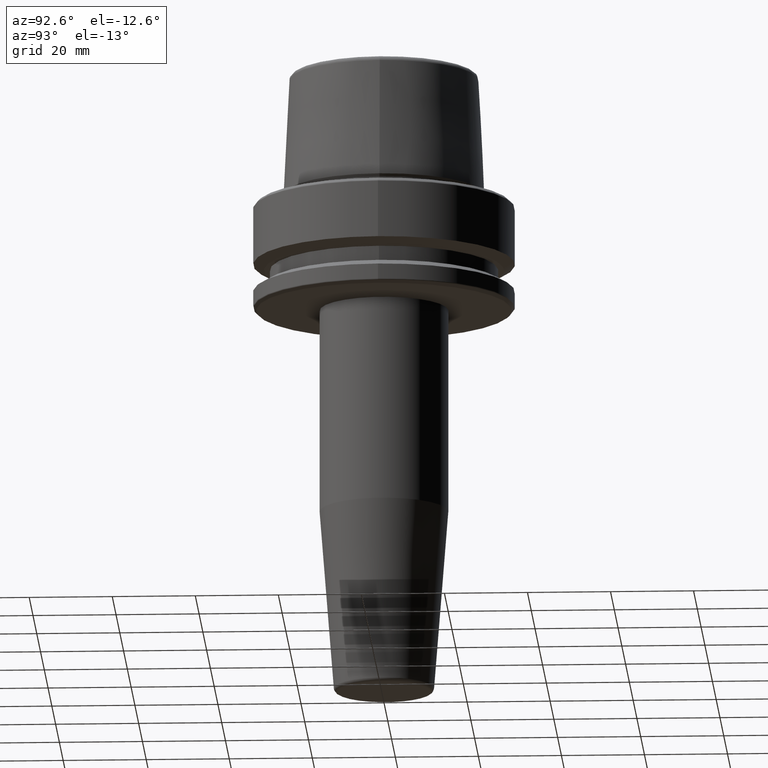
[diagram: clean part render]
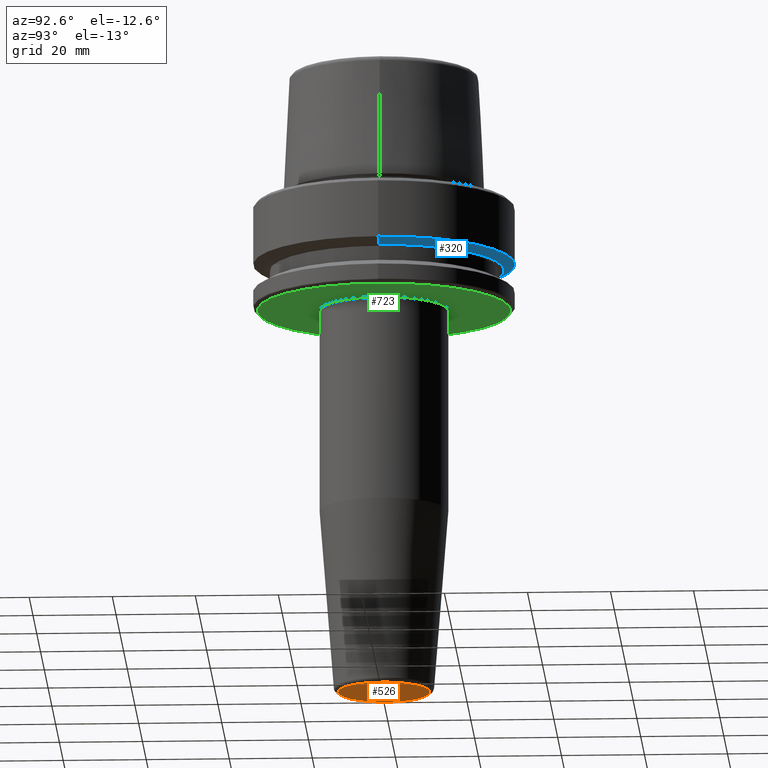
[diagram: same view with three faces highlighted in distinct colors, each labeled with its STEP entity id]
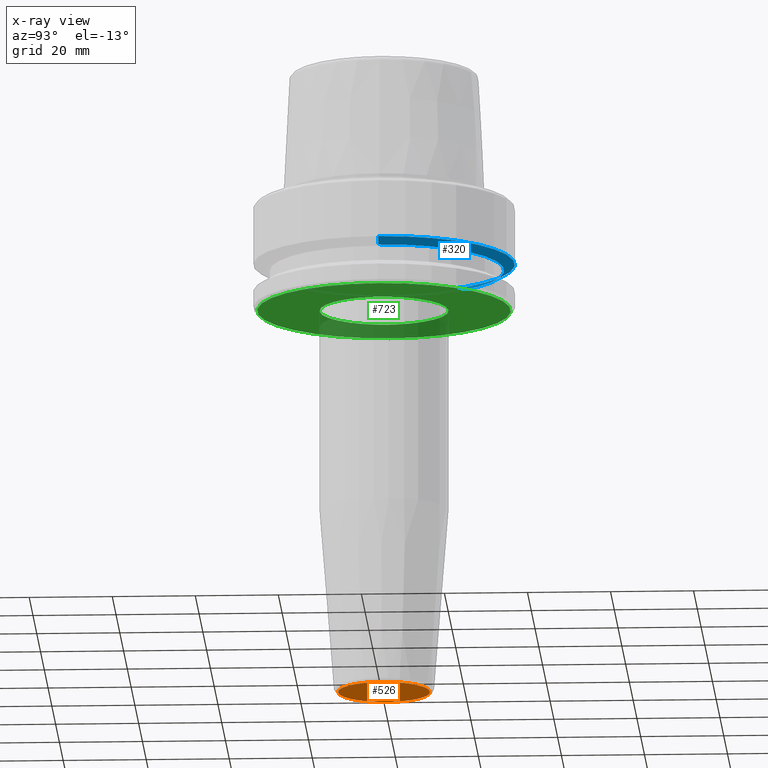
[diagram: x-ray of the same camera — body ghosted, the three highlighted faces saturated]
A machine part, auxiliary view with three faces highlighted in distinct colors.
The next image is the same camera in x-ray (body ghosted, the three faces saturated) — at least one of them is partly hidden behind the body in this view.
Their STEP definitions:

[orange] entity #526 — the highlighted planar face has unit normal (0, -0, 1).
#1 = CARTESIAN_POINT ( 'NONE',  ( 0.0000000000000000000, 3.673940397442060800E-015, -120.0000000000000000 ) ) ;
#38 = VERTEX_POINT ( 'NONE', #884 ) ;
#56 = AXIS2_PLACEMENT_3D ( 'NONE', #1, #190, #1034 ) ;
#79 = ORIENTED_EDGE ( 'NONE', *, *, #1036, .T. ) ;
#98 = AXIS2_PLACEMENT_3D ( 'NONE', #341, #448, #1121 ) ;
#108 = CARTESIAN_POINT ( 'NONE',  ( 0.0000000000000000000, 8.459528258358124200E-033, -120.0000000000000000 ) ) ;
#111 = CIRCLE ( 'NONE', #98, 11.07560950834178600 ) ;
#190 = DIRECTION ( 'NONE',  ( -0.0000000000000000000, 3.908447231321341700E-017, -1.000000000000000000 ) ) ;
#341 = CARTESIAN_POINT ( 'NONE',  ( 0.0000000000000000000, 3.673940397442060800E-015, -120.0000000000000000 ) ) ;
#346 = DIRECTION ( 'NONE',  ( 0.0000000000000000000, -3.908447231321341700E-017, 1.000000000000000000 ) ) ;
#387 = VERTEX_POINT ( 'NONE', #1186 ) ;
#425 = EDGE_CURVE ( 'NONE', #387, #38, #780, .T. ) ;
#448 = DIRECTION ( 'NONE',  ( -0.0000000000000000000, 3.908447231321341700E-017, -1.000000000000000000 ) ) ;
#526 = ADVANCED_FACE ( 'NONE', ( #1072 ), #856, .F. ) ;
#678 = DIRECTION ( 'NONE',  ( 0.0000000000000000000, -1.000000000000000000, -3.908447231321341700E-017 ) ) ;
#780 = CIRCLE ( 'NONE', #56, 11.07560950834178600 ) ;
#844 = EDGE_LOOP ( 'NONE', ( #79, #1219 ) ) ;
#856 = PLANE ( 'NONE',  #1258 ) ;
#884 = CARTESIAN_POINT ( 'NONE',  ( 0.0000000000000000000, 11.07560950834179000, -120.0000000000000000 ) ) ;
#1034 = DIRECTION ( 'NONE',  ( 0.0000000000000000000, 1.000000000000000000, 0.0000000000000000000 ) ) ;
#1036 = EDGE_CURVE ( 'NONE', #38, #387, #111, .T. ) ;
#1072 = FACE_OUTER_BOUND ( 'NONE', #844, .T. ) ;
#1121 = DIRECTION ( 'NONE',  ( 0.0000000000000000000, 1.000000000000000000, 0.0000000000000000000 ) ) ;
#1186 = CARTESIAN_POINT ( 'NONE',  ( 1.417414554388215500E-015, -11.07560950834178300, -120.0000000000000000 ) ) ;
#1219 = ORIENTED_EDGE ( 'NONE', *, *, #425, .T. ) ;
#1258 = AXIS2_PLACEMENT_3D ( 'NONE', #108, #346, #678 ) ;

[blue] entity #320 — the highlighted conical surface has half-angle 60 deg.
#11 = DIRECTION ( 'NONE',  ( 0.8660254037844389300, 0.0000000000000000000, 0.4999999999999995000 ) ) ;
#28 = CONICAL_SURFACE ( 'NONE', #531, 28.94089653438085100, 1.047197551196598300 ) ;
#35 = LINE ( 'NONE', #954, #753 ) ;
#70 = DIRECTION ( 'NONE',  ( -0.8660254037844389300, 1.060575238724907300E-016, 0.4999999999999995000 ) ) ;
#127 = LINE ( 'NONE', #873, #139 ) ;
#131 = EDGE_CURVE ( 'NONE', #634, #328, #1164, .T. ) ;
#139 = VECTOR ( 'NONE', #11, 1000.000000000000000 ) ;
#191 = AXIS2_PLACEMENT_3D ( 'NONE', #193, #912, #300 ) ;
#193 = CARTESIAN_POINT ( 'NONE',  ( 0.0000000000000000000, 0.0000000000000000000, -16.10000000000001600 ) ) ;
#203 = FACE_OUTER_BOUND ( 'NONE', #823, .T. ) ;
#300 = DIRECTION ( 'NONE',  ( 1.000000000000000000, 0.0000000000000000000, 0.0000000000000000000 ) ) ;
#320 = ADVANCED_FACE ( 'NONE', ( #203 ), #28, .T. ) ;
#328 = VERTEX_POINT ( 'NONE', #538 ) ;
#372 = ORIENTED_EDGE ( 'NONE', *, *, #450, .F. ) ;
#406 = ORIENTED_EDGE ( 'NONE', *, *, #671, .T. ) ;
#450 = EDGE_CURVE ( 'NONE', #634, #1208, #127, .T. ) ;
#463 = AXIS2_PLACEMENT_3D ( 'NONE', #650, #995, #950 ) ;
#519 = CARTESIAN_POINT ( 'NONE',  ( 0.0000000000000000000, 0.0000000000000000000, -16.10000000000001600 ) ) ;
#531 = AXIS2_PLACEMENT_3D ( 'NONE', #519, #882, #826 ) ;
#538 = CARTESIAN_POINT ( 'NONE',  ( -28.94089653438085100, 3.700937523921292900E-015, -16.10000000000001600 ) ) ;
#584 = CARTESIAN_POINT ( 'NONE',  ( -31.50000000000000000, 3.857637417314162700E-015, -14.62250092524070100 ) ) ;
#634 = VERTEX_POINT ( 'NONE', #851 ) ;
#650 = CARTESIAN_POINT ( 'NONE',  ( 0.0000000000000000000, 0.0000000000000000000, -14.62250092524070100 ) ) ;
#671 = EDGE_CURVE ( 'NONE', #328, #696, #35, .T. ) ;
#696 = VERTEX_POINT ( 'NONE', #584 ) ;
#753 = VECTOR ( 'NONE', #70, 1000.000000000000000 ) ;
#823 = EDGE_LOOP ( 'NONE', ( #1142, #406, #1132, #372 ) ) ;
#826 = DIRECTION ( 'NONE',  ( 1.000000000000000000, 0.0000000000000000000, 0.0000000000000000000 ) ) ;
#851 = CARTESIAN_POINT ( 'NONE',  ( 28.94089653438085100, 0.0000000000000000000, -16.10000000000001600 ) ) ;
#873 = CARTESIAN_POINT ( 'NONE',  ( 28.94089653438085100, 0.0000000000000000000, -16.10000000000001600 ) ) ;
#882 = DIRECTION ( 'NONE',  ( -0.0000000000000000000, -0.0000000000000000000, 1.000000000000000000 ) ) ;
#904 = CIRCLE ( 'NONE', #463, 31.50000000000000000 ) ;
#912 = DIRECTION ( 'NONE',  ( -0.0000000000000000000, -0.0000000000000000000, 1.000000000000000000 ) ) ;
#950 = DIRECTION ( 'NONE',  ( 1.000000000000000000, 0.0000000000000000000, 0.0000000000000000000 ) ) ;
#954 = CARTESIAN_POINT ( 'NONE',  ( -28.94089653438085100, 3.544237630528423800E-015, -16.10000000000001600 ) ) ;
#995 = DIRECTION ( 'NONE',  ( -0.0000000000000000000, -0.0000000000000000000, 1.000000000000000000 ) ) ;
#1026 = EDGE_CURVE ( 'NONE', #1208, #696, #904, .T. ) ;
#1052 = CARTESIAN_POINT ( 'NONE',  ( 31.50000000000000000, 0.0000000000000000000, -14.62250092524070100 ) ) ;
#1132 = ORIENTED_EDGE ( 'NONE', *, *, #1026, .F. ) ;
#1142 = ORIENTED_EDGE ( 'NONE', *, *, #131, .T. ) ;
#1164 = CIRCLE ( 'NONE', #191, 28.94089653438085100 ) ;
#1208 = VERTEX_POINT ( 'NONE', #1052 ) ;

[green] entity #723 — the highlighted planar face has unit normal (0, -0, 1).
#76 = ORIENTED_EDGE ( 'NONE', *, *, #715, .F. ) ;
#81 = EDGE_CURVE ( 'NONE', #810, #452, #329, .T. ) ;
#143 = DIRECTION ( 'NONE',  ( 1.000000000000000000, 0.0000000000000000000, 0.0000000000000000000 ) ) ;
#152 = CARTESIAN_POINT ( 'NONE',  ( -30.53431457505076800, 3.756694181974139400E-015, -26.00000000000001100 ) ) ;
#155 = CARTESIAN_POINT ( 'NONE',  ( 0.0000000000000000000, 30.53431457505076800, -26.00000000000001100 ) ) ;
#189 = VERTEX_POINT ( 'NONE', #585 ) ;
#251 = DIRECTION ( 'NONE',  ( 1.000000000000000000, 0.0000000000000000000, 0.0000000000000000000 ) ) ;
#253 = DIRECTION ( 'NONE',  ( -0.0000000000000000000, -0.0000000000000000000, 1.000000000000000000 ) ) ;
#304 = EDGE_CURVE ( 'NONE', #189, #597, #1006, .T. ) ;
#329 = CIRCLE ( 'NONE', #770, 15.49999999999999300 ) ;
#373 = CIRCLE ( 'NONE', #895, 15.49999999999999300 ) ;
#386 = DIRECTION ( 'NONE',  ( 0.0000000000000000000, 0.0000000000000000000, -1.000000000000000000 ) ) ;
#391 = CARTESIAN_POINT ( 'NONE',  ( 1.898202538678396800E-015, -15.49999999999999300, -26.00000000000001100 ) ) ;
#443 = DIRECTION ( 'NONE',  ( 1.000000000000000000, 0.0000000000000000000, 0.0000000000000000000 ) ) ;
#452 = VERTEX_POINT ( 'NONE', #885 ) ;
#565 = DIRECTION ( 'NONE',  ( 0.0000000000000000000, -0.0000000000000000000, 1.000000000000000000 ) ) ;
#585 = CARTESIAN_POINT ( 'NONE',  ( 30.53431457505076800, 0.0000000000000000000, -26.00000000000001100 ) ) ;
#588 = CIRCLE ( 'NONE', #899, 30.53431457505076800 ) ;
#597 = VERTEX_POINT ( 'NONE', #152 ) ;
#620 = CARTESIAN_POINT ( 'NONE',  ( 0.0000000000000000000, 0.0000000000000000000, -26.00000000000001100 ) ) ;
#715 = EDGE_CURVE ( 'NONE', #597, #189, #588, .T. ) ;
#723 = ADVANCED_FACE ( 'NONE', ( #789, #839 ), #1152, .F. ) ;
#770 = AXIS2_PLACEMENT_3D ( 'NONE', #620, #386, #251 ) ;
#789 = FACE_OUTER_BOUND ( 'NONE', #928, .T. ) ;
#809 = CARTESIAN_POINT ( 'NONE',  ( 0.0000000000000000000, 0.0000000000000000000, -26.00000000000001100 ) ) ;
#810 = VERTEX_POINT ( 'NONE', #391 ) ;
#830 = AXIS2_PLACEMENT_3D ( 'NONE', #1013, #1188, #443 ) ;
#839 = FACE_BOUND ( 'NONE', #842, .T. ) ;
#842 = EDGE_LOOP ( 'NONE', ( #1234, #1145 ) ) ;
#854 = EDGE_CURVE ( 'NONE', #452, #810, #373, .T. ) ;
#885 = CARTESIAN_POINT ( 'NONE',  ( 0.0000000000000000000, 15.49999999999999300, -26.00000000000001100 ) ) ;
#895 = AXIS2_PLACEMENT_3D ( 'NONE', #809, #1189, #999 ) ;
#899 = AXIS2_PLACEMENT_3D ( 'NONE', #1228, #253, #1224 ) ;
#928 = EDGE_LOOP ( 'NONE', ( #966, #76 ) ) ;
#966 = ORIENTED_EDGE ( 'NONE', *, *, #304, .F. ) ;
#999 = DIRECTION ( 'NONE',  ( 1.000000000000000000, 0.0000000000000000000, 0.0000000000000000000 ) ) ;
#1006 = CIRCLE ( 'NONE', #830, 30.53431457505076800 ) ;
#1010 = AXIS2_PLACEMENT_3D ( 'NONE', #155, #565, #143 ) ;
#1013 = CARTESIAN_POINT ( 'NONE',  ( 0.0000000000000000000, 0.0000000000000000000, -26.00000000000001100 ) ) ;
#1145 = ORIENTED_EDGE ( 'NONE', *, *, #81, .F. ) ;
#1152 = PLANE ( 'NONE',  #1010 ) ;
#1188 = DIRECTION ( 'NONE',  ( -0.0000000000000000000, -0.0000000000000000000, 1.000000000000000000 ) ) ;
#1189 = DIRECTION ( 'NONE',  ( 0.0000000000000000000, 0.0000000000000000000, -1.000000000000000000 ) ) ;
#1224 = DIRECTION ( 'NONE',  ( 1.000000000000000000, 0.0000000000000000000, 0.0000000000000000000 ) ) ;
#1228 = CARTESIAN_POINT ( 'NONE',  ( 0.0000000000000000000, 0.0000000000000000000, -26.00000000000001100 ) ) ;
#1234 = ORIENTED_EDGE ( 'NONE', *, *, #854, .F. ) ;